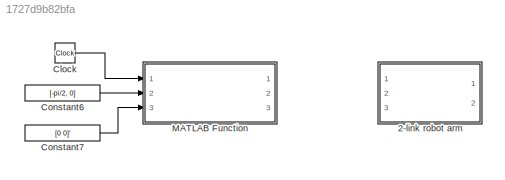
MODEL slx_1727d9b82bfa
KIND model
CONFIG AbsTol = auto
CONFIG EnableMultiTasking = off
CONFIG FixedStep = 1e-3
CONFIG MaxStep = auto
CONFIG MinStep = auto
CONFIG RelTol = 1e-3
CONFIG SampleTimeConstraint = Unconstrained
CONFIG Solver = ode4
CONFIG SolverName = ode4
CONFIG StartTime = 0.0
CONFIG StopTime = 100.0
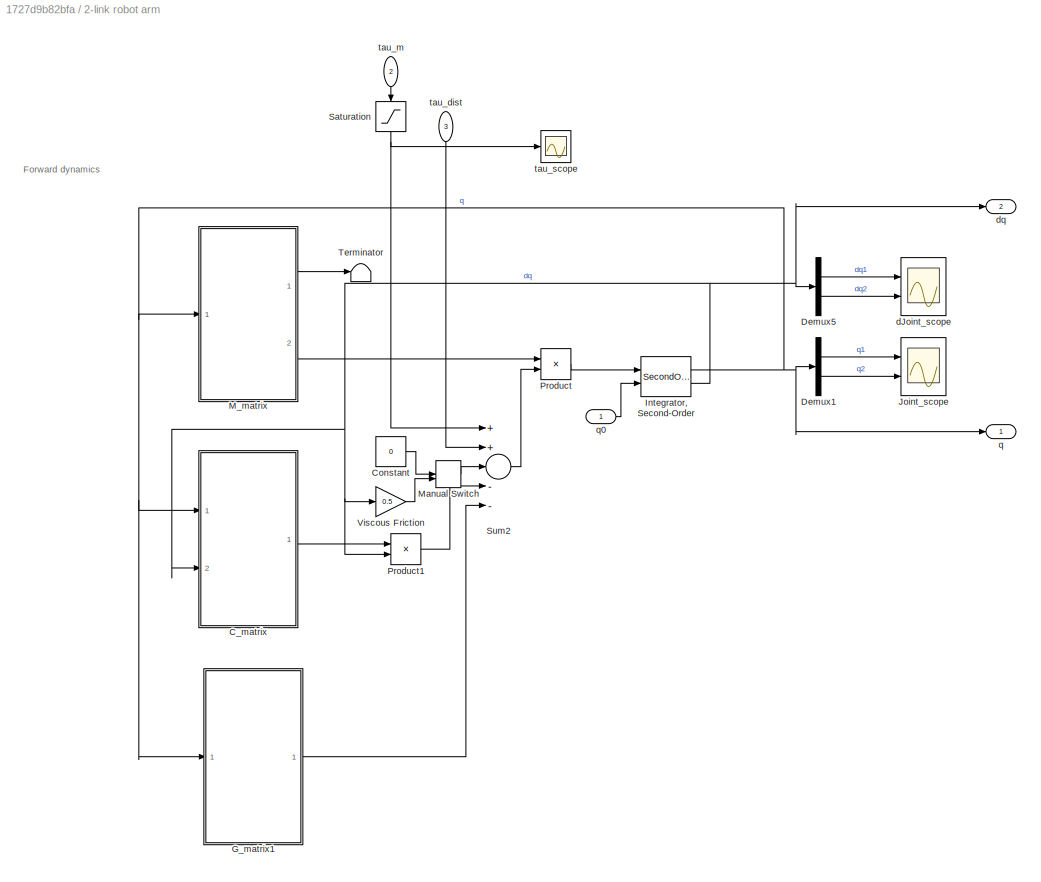
BLOCK [SubSystem] 2-link robot arm
  Ports = [3, 2]
  RequestExecContextInheritance = off
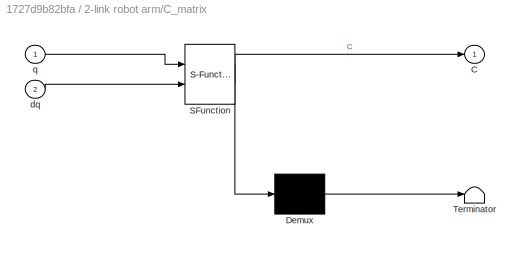
BLOCK [SubSystem] 2-link robot arm/C_matrix
  ErrorFcn = Stateflow.Translate.translate
  PermitHierarchicalResolution = ExplicitOnly
  Ports = [2, 1]
  RequestExecContextInheritance = off
  SFBlockType = MATLAB Function
  TreatAsAtomicUnit = on
BLOCK [Demux] 2-link robot arm/C_matrix/ Demux 
  Outputs = 1
  Ports = [1, 1]
BLOCK [S-Function] 2-link robot arm/C_matrix/ SFunction 
  EnableBusSupport = on
  FunctionName = sf_sfun
  Parameters = l1,lc2,m2
  PortCounts = [2 2]
  Ports = [2, 2]
  SFcnIsStateOwnerBlock = off
  SFunctionDeploymentMode = off
  Tag = Stateflow S-Function ctc_robot_model_2017b 23
BLOCK [Terminator] 2-link robot arm/C_matrix/ Terminator 
BLOCK [Outport] 2-link robot arm/C_matrix/C
  IconDisplay = Port number
BLOCK [Inport] 2-link robot arm/C_matrix/dq
  IconDisplay = Port number
  Port = 2
BLOCK [Inport] 2-link robot arm/C_matrix/q
  IconDisplay = Port number
BLOCK [Constant] 2-link robot arm/Constant
  Value = 0
BLOCK [Demux] 2-link robot arm/Demux1
  DisplayOption = bar
  Outputs = 2
  Ports = [1, 2]
BLOCK [Demux] 2-link robot arm/Demux5
  DisplayOption = bar
  Outputs = 2
  Ports = [1, 2]
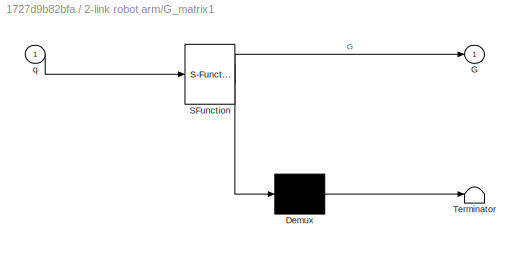
BLOCK [SubSystem] 2-link robot arm/G_matrix1
  ErrorFcn = Stateflow.Translate.translate
  PermitHierarchicalResolution = ExplicitOnly
  Ports = [1, 1]
  RequestExecContextInheritance = off
  SFBlockType = MATLAB Function
  TreatAsAtomicUnit = on
BLOCK [Demux] 2-link robot arm/G_matrix1/ Demux 
  Outputs = 1
  Ports = [1, 1]
BLOCK [S-Function] 2-link robot arm/G_matrix1/ SFunction 
  EnableBusSupport = on
  FunctionName = sf_sfun
  Parameters = g,l1,lc1,lc2,m1,m2
  PortCounts = [1 2]
  Ports = [1, 2]
  SFcnIsStateOwnerBlock = off
  SFunctionDeploymentMode = off
  Tag = Stateflow S-Function ctc_robot_model_2017b 24
BLOCK [Terminator] 2-link robot arm/G_matrix1/ Terminator 
BLOCK [Outport] 2-link robot arm/G_matrix1/G
  IconDisplay = Port number
BLOCK [Inport] 2-link robot arm/G_matrix1/q
  IconDisplay = Port number
BLOCK [SecondOrderIntegrator] 2-link robot arm/Integrator, Second-Order
  ICSourceX = external
  Ports = [2, 2]
BLOCK [Scope] 2-link robot arm/Joint_scope
  Floating = off
  NumInputPorts = 2
  Ports = [2]
  ScopeSpecificationString = Simulink.scopes.TimeScopeBlockCfg('CurrentConfiguration', extmgr.ConfigurationSet(extmgr.Configuration('Core','General UI',true,'FigureColor',[0 0 0]),extmgr.Configuration('Core','Source UI',true),extmgr.Configuration('Sources','WiredSimulink',true),extmgr.Configuration('Visuals','Time Domain',true,'SerializedDisplays',{struct('MinYLimReal','-987.12473','MaxYLimReal','762.26063','YLabelReal','q_i(...<+1820ch>
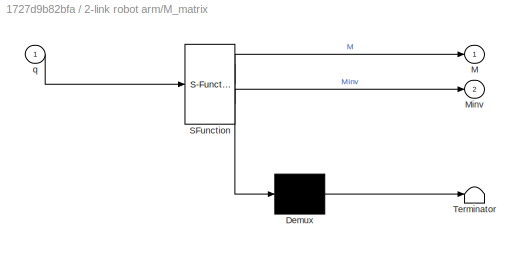
BLOCK [SubSystem] 2-link robot arm/M_matrix
  ErrorFcn = Stateflow.Translate.translate
  PermitHierarchicalResolution = ExplicitOnly
  Ports = [1, 2]
  RequestExecContextInheritance = off
  SFBlockType = MATLAB Function
  TreatAsAtomicUnit = on
BLOCK [Demux] 2-link robot arm/M_matrix/ Demux 
  Outputs = 1
  Ports = [1, 1]
BLOCK [S-Function] 2-link robot arm/M_matrix/ SFunction 
  EnableBusSupport = on
  FunctionName = sf_sfun
  Parameters = I1zz,I2zz,l1,lc1,lc2,m1,m2
  PortCounts = [1 3]
  Ports = [1, 3]
  SFcnIsStateOwnerBlock = off
  SFunctionDeploymentMode = off
  Tag = Stateflow S-Function ctc_robot_model_2017b 25
BLOCK [Terminator] 2-link robot arm/M_matrix/ Terminator 
BLOCK [Outport] 2-link robot arm/M_matrix/M
  IconDisplay = Port number
BLOCK [Outport] 2-link robot arm/M_matrix/Minv
  IconDisplay = Port number
  Port = 2
BLOCK [Inport] 2-link robot arm/M_matrix/q
  IconDisplay = Port number
BLOCK [ManualSwitch] 2-link robot arm/Manual Switch
BLOCK [Product] 2-link robot arm/Product
  InputSameDT = off
  Multiplication = Matrix(*)
  OutDataTypeStr = Inherit: Inherit via internal rule
  Ports = [2, 1]
  RndMeth = Floor
  SaturateOnIntegerOverflow = off
BLOCK [Product] 2-link robot arm/Product1
  InputSameDT = off
  Multiplication = Matrix(*)
  OutDataTypeStr = Inherit: Inherit via internal rule
  Ports = [2, 1]
  RndMeth = Floor
  SaturateOnIntegerOverflow = off
BLOCK [Saturate] 2-link robot arm/Saturation
  InputPortMap = u0
  LowerLimit = tau_down
  Ports = [1, 1]
  UpperLimit = tau_up
BLOCK [Sum] 2-link robot arm/Sum2
  InputSameDT = off
  Inputs = ++|---
  OutDataTypeStr = Inherit: Inherit via internal rule
  Ports = [5, 1]
  SaturateOnIntegerOverflow = off
BLOCK [Terminator] 2-link robot arm/Terminator
BLOCK [Gain] 2-link robot arm/Viscous Friction
  Gain = 0.5
  OutDataTypeStr = Inherit: Inherit via internal rule
  ParamDataTypeStr = Inherit: Inherit via internal rule
  SaturateOnIntegerOverflow = off
BLOCK [Scope] 2-link robot arm/dJoint_scope
  Floating = off
  NumInputPorts = 2
  Ports = [2]
  ScopeSpecificationString = Simulink.scopes.TimeScopeBlockCfg('CurrentConfiguration', extmgr.ConfigurationSet(extmgr.Configuration('Core','General UI',true,'FigureColor',[0 0 0]),extmgr.Configuration('Core','Source UI',true),extmgr.Configuration('Sources','WiredSimulink',true,'DataLoggingVariableName','ScopeData1'),extmgr.Configuration('Visuals','Time Domain',true,'SerializedDisplays',{struct('MinYLimReal','-23.61564','MaxYL...<+1852ch>
BLOCK [Outport] 2-link robot arm/dq 
  IconDisplay = Port number
  Port = 2
  VectorParamsAs1DForOutWhenUnconnected = on
BLOCK [Outport] 2-link robot arm/q 
  IconDisplay = Port number
  VectorParamsAs1DForOutWhenUnconnected = on
BLOCK [Inport] 2-link robot arm/q0
  IconDisplay = Port number
BLOCK [Inport] 2-link robot arm/tau_dist
  IconDisplay = Port number
  Port = 3
BLOCK [Inport] 2-link robot arm/tau_m
  IconDisplay = Port number
  Port = 2
BLOCK [Scope] 2-link robot arm/tau_scope
  Floating = off
  NumInputPorts = 1
  Ports = [1]
  ScopeSpecificationString = Simulink.scopes.TimeScopeBlockCfg('CurrentConfiguration', extmgr.ConfigurationSet(extmgr.Configuration('Core','General UI',true),extmgr.Configuration('Core','Source UI',true),extmgr.Configuration('Sources','WiredSimulink',true,'DataLoggingVariableName','ScopeData3'),extmgr.Configuration('Visuals','Time Domain',true,'SerializedDisplays',{struct('MinYLimReal','-234.30797','MaxYLimReal','108.77174','...<+1429ch>
BLOCK [Clock] Clock
BLOCK [Constant] Constant6
  Value = [-pi/2, 0]
BLOCK [Constant] Constant7
  Value = [0 0]'
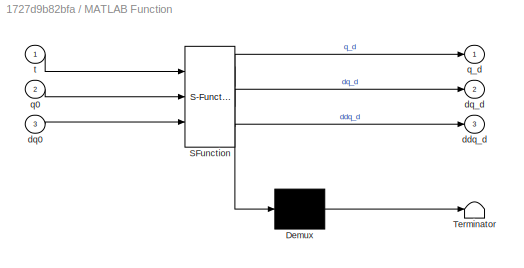
BLOCK [SubSystem] MATLAB Function
  ErrorFcn = Stateflow.Translate.translate
  PermitHierarchicalResolution = ExplicitOnly
  Ports = [3, 3]
  RequestExecContextInheritance = off
  SFBlockType = MATLAB Function
  TreatAsAtomicUnit = on
BLOCK [Demux] MATLAB Function/ Demux 
  Outputs = 1
  Ports = [1, 1]
BLOCK [S-Function] MATLAB Function/ SFunction 
  EnableBusSupport = on
  FunctionName = sf_sfun
  PortCounts = [3 4]
  Ports = [3, 4]
  SFcnIsStateOwnerBlock = off
  SFunctionDeploymentMode = off
  Tag = Stateflow S-Function ctc_robot_model_2017b 10
BLOCK [Terminator] MATLAB Function/ Terminator 
BLOCK [Outport] MATLAB Function/ddq_d
  IconDisplay = Port number
  Port = 3
BLOCK [Inport] MATLAB Function/dq0
  IconDisplay = Port number
  Port = 3
BLOCK [Outport] MATLAB Function/dq_d
  IconDisplay = Port number
  Port = 2
BLOCK [Inport] MATLAB Function/q0
  IconDisplay = Port number
  Port = 2
BLOCK [Outport] MATLAB Function/q_d
  IconDisplay = Port number
BLOCK [Inport] MATLAB Function/t
  IconDisplay = Port number
ANNOTATION 2-link robot arm: Forward dynamics
LINE 2-link robot arm/C_matrix:1 -> 2-link robot arm/Product1:1
LINE 2-link robot arm/Constant:1 -> 2-link robot arm/Manual Switch:1
LINE 2-link robot arm/Demux1:1 -> 2-link robot arm/Joint_scope:1
LINE 2-link robot arm/Demux1:2 -> 2-link robot arm/Joint_scope:2
LINE 2-link robot arm/Demux5:1 -> 2-link robot arm/dJoint_scope:1
LINE 2-link robot arm/Demux5:2 -> 2-link robot arm/dJoint_scope:2
LINE 2-link robot arm/G_matrix1:1 -> 2-link robot arm/Sum2:5
NET 2-link robot arm/Integrator, Second-Order:1 -> 2-link robot arm/C_matrix:1, 2-link robot arm/Demux1:1, 2-link robot arm/G_matrix1:1, 2-link robot arm/M_matrix:1, 2-link robot arm/q :1
NET 2-link robot arm/Integrator, Second-Order:2 -> 2-link robot arm/C_matrix:2, 2-link robot arm/Demux5:1, 2-link robot arm/Product1:2, 2-link robot arm/Viscous Friction:1, 2-link robot arm/dq :1
LINE 2-link robot arm/M_matrix:1 -> 2-link robot arm/Terminator:1
LINE 2-link robot arm/M_matrix:2 -> 2-link robot arm/Product:1
LINE 2-link robot arm/Manual Switch:1 -> 2-link robot arm/Sum2:3
LINE 2-link robot arm/Product1:1 -> 2-link robot arm/Sum2:4
LINE 2-link robot arm/Product:1 -> 2-link robot arm/Integrator, Second-Order:1
NET 2-link robot arm/Saturation:1 -> 2-link robot arm/Sum2:1, 2-link robot arm/tau_scope:1
LINE 2-link robot arm/Sum2:1 -> 2-link robot arm/Product:2
LINE 2-link robot arm/Viscous Friction:1 -> 2-link robot arm/Manual Switch:2
LINE 2-link robot arm/q0:1 -> 2-link robot arm/Integrator, Second-Order:2
LINE 2-link robot arm/tau_dist:1 -> 2-link robot arm/Sum2:2
LINE 2-link robot arm/tau_m:1 -> 2-link robot arm/Saturation:1
LINE Clock:1 -> MATLAB Function:1
LINE Constant6:1 -> MATLAB Function:2
LINE Constant7:1 -> MATLAB Function:3
note: NET lines group one-source signal fan-out (src -> all destinations, sorted); 1:1 wires keep LINE
CHART MATLAB Function states=1 transitions=1
  STATE_LABEL 'eML_blk_kernel()'
  STATE_LABEL 'SCRIPT:\nfunction [q_d, dq_d, ddq_d] = desired_traj(t,q0,dq0)\n    A = 5*[1; 1];\n    B = 5*[1; 1];\n    w = 2*pi*1;\n\n    q_d   = -A./w^2*sin(w*t) -B./(2*w)^2*cos(2*w*t) + dq0*t + q0;\n    dq_d  = -A./w*cos(w*t) + B./(2*w)*sin(2*w*t) + dq0;\n    ddq_d = A*sin(w*t) + B*cos(2*w*t);\nend\n'
CHART 2-link
 robot arm/C_matrix states=1 transitions=1
  STATE_LABEL 'eML_blk_kernel()'
  STATE_LABEL 'SCRIPT:\nfunction C = C_matrix(q,dq, l1, lc2, m2)\n%#codegen\n\n%    This function was generated by the Symbolic Math Toolbox version 8.3.\n%    05-Nov-2019 15:18:30\nq1 = q(1);\nq2 = q(2);\ndq1 = dq(1);\ndq2 = dq(2);\nt2 = sin(q2);\nC = reshape([-dq2.*l1.*lc2.*m2.*t2,dq1.*l1.*lc2.*m2.*t2,-l1.*lc2.*m2.*t2.*(dq1+dq2),0.0],[2,2]);\n'
CHART 2-link
 robot arm/G_matrix1 states=1 transitions=1
  STATE_LABEL 'eML_blk_kernel()'
  STATE_LABEL 'SCRIPT:\nfunction G = G_matrix(q, g, l1, lc1, lc2, m1, m2)\n%#codegen\n\n%    This function was generated by the Symbolic Math Toolbox version 8.3.\n%    05-Nov-2019 15:18:30\nq1 = q(1);\nq2 = q(2);\nt2 = cos(q1);\nt3 = q1+q2;\nt4 = cos(t3);\nG = [g.*m2.*(l1.*t2+lc2.*t4)+g.*lc1.*m1.*t2;g.*lc2.*m2.*t4];\n'
CHART 2-link
 robot arm/M_matrix states=1 transitions=1
  STATE_LABEL 'eML_blk_kernel()'
  STATE_LABEL 'SCRIPT:\nfunction [M, Minv] = M_matrix(q, I1zz, I2zz, l1, lc1, lc2, m1, m2)\n%#codegen\n\n%    This function was generated by the Symbolic Math Toolbox version 8.3.\n%    05-Nov-2019 15:18:29\nq1 = q(1);\nq2 = q(2);\nt2 = cos(q2);\nt3 = lc2.^2;\nt4 = m2.*t3;\nt5 = l1.*lc2.*m2.*t2;\nt6 = I2zz+t4+t5;\nM = reshape([I1zz+t5+t6+l1.^2.*m2+lc1.^2.*m1,t6,t6,I2zz+t4],[2,2]);\nMinv = pinv(M);'
